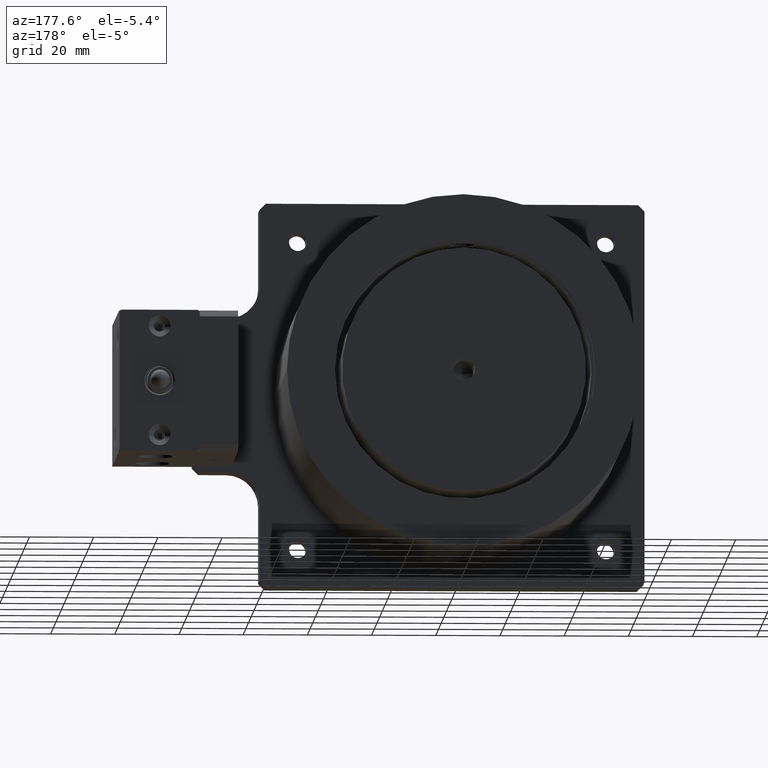
[diagram: clean part render]
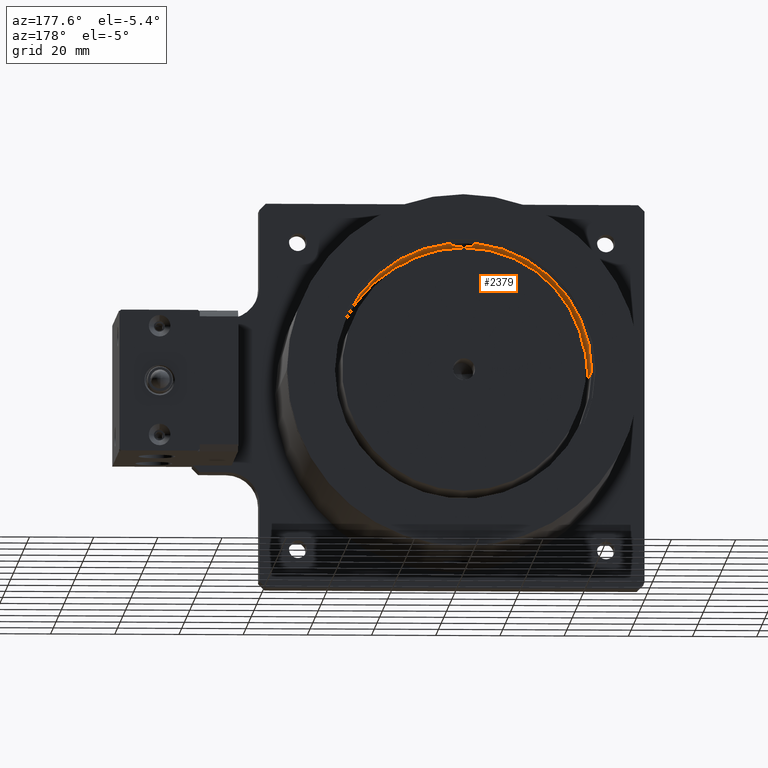
[diagram: same view with one face highlighted and labeled with its STEP entity id]
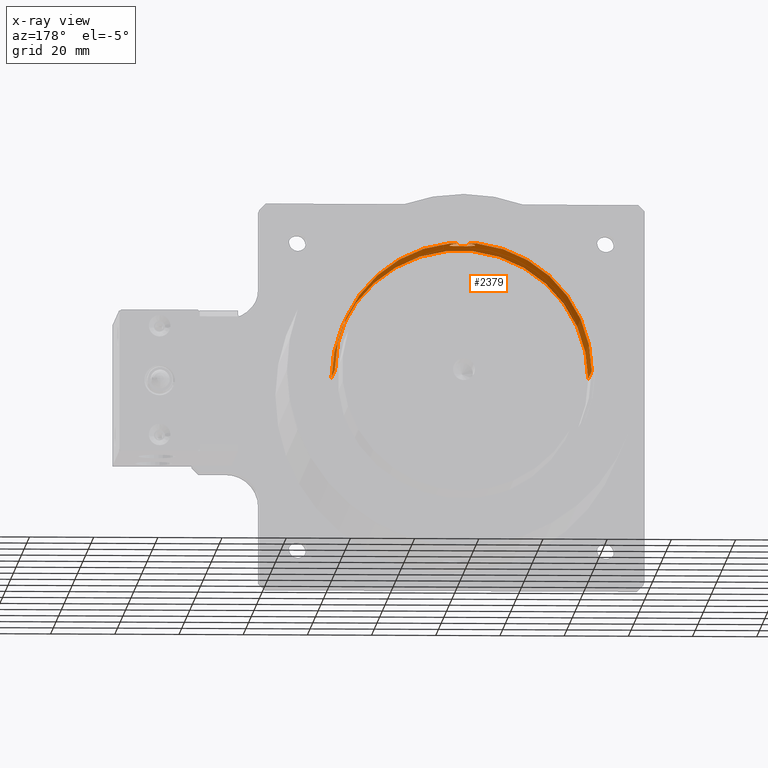
[diagram: x-ray of the same camera — body ghosted, the highlighted face saturated]
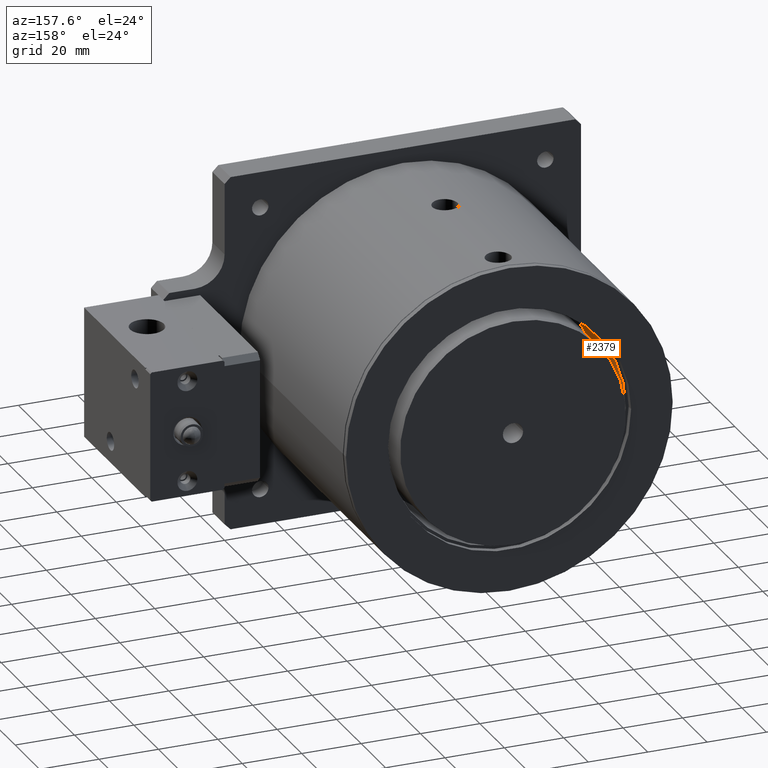
[diagram: same view with one face highlighted and labeled with its STEP entity id]
A machine part, auxiliary view. The second image highlights one B-rep face of the part: STEP entity #2379.
The next image is the same camera in x-ray: the body ghosted, the highlighted face saturated — about 16% of this face is hidden behind the body in this view.
A second angle (auxiliary view) of the same face is appended — the face is thin or edge-on in the first view.
In plain terms, the highlighted cylindrical surface (partial cylindrical patch) has radius 40 mm, axis along (0, 1, 0).
Its self-contained STEP definition (entity closure, byte-faithful):
#900=CARTESIAN_POINT('',(-1.033E1,-8.2283E1,-4.E1));
#901=CARTESIAN_POINT('',(-1.056251782289E1,-8.2283E1,-4.E1));
#902=CARTESIAN_POINT('',(-1.102154020439E1,-8.223906440972E1,
-3.999597734930E1));
#903=CARTESIAN_POINT('',(-1.169969150205E1,-8.204110077887E1,
-3.997838880405E1));
#904=CARTESIAN_POINT('',(-1.234372176926E1,-8.171133420473E1,
-3.995088869234E1));
#905=CARTESIAN_POINT('',(-1.293443222659E1,-8.125267917317E1,
-3.991641457498E1));
#906=CARTESIAN_POINT('',(-1.344740508465E1,-8.067371229118E1,
-3.987924229128E1));
#907=CARTESIAN_POINT('',(-1.385820364304E1,-7.999073719081E1,
-3.984460535201E1));
#908=CARTESIAN_POINT('',(-1.414515281219E1,-7.922787548135E1,
-3.981783127589E1));
#909=CARTESIAN_POINT('',(-1.429264381304E1,-7.841506617976E1,
-3.980324233474E1));
#910=CARTESIAN_POINT('',(-1.429267798953E1,-7.758531646762E1,
-3.980323889239E1));
#911=CARTESIAN_POINT('',(-1.414525602119E1,-7.677250309860E1,
-3.981782124867E1));
#912=CARTESIAN_POINT('',(-1.385838174488E1,-7.600963344746E1,
-3.984458937491E1));
#913=CARTESIAN_POINT('',(-1.344764891788E1,-7.532662214521E1,
-3.987922296316E1));
#914=CARTESIAN_POINT('',(-1.293475174610E1,-7.474762471216E1,
-3.991639334770E1));
#915=CARTESIAN_POINT('',(-1.234412509378E1,-7.428892601758E1,
-3.995086792918E1));
#916=CARTESIAN_POINT('',(-1.170012251510E1,-7.395906369039E1,
-3.997837444594E1));
#917=CARTESIAN_POINT('',(-1.102179781013E1,-7.376097007662E1,
-3.999597415752E1));
#918=CARTESIAN_POINT('',(-1.056261599067E1,-7.3717E1,-4.E1));
#919=CARTESIAN_POINT('',(-1.033E1,-7.3717E1,-4.E1));
#924=DIRECTION('',(0.E0,1.E0,0.E0));
#925=VECTOR('',#924,2.6E1);
#926=CARTESIAN_POINT('',(-5.033E1,-8.5E1,0.E0));
#927=LINE('',#926,#925);
#955=CARTESIAN_POINT('',(-1.033E1,-8.5E1,0.E0));
#956=DIRECTION('',(0.E0,-1.E0,0.E0));
#957=DIRECTION('',(-1.E0,0.E0,0.E0));
#958=AXIS2_PLACEMENT_3D('',#955,#956,#957);
#977=DIRECTION('',(0.E0,1.E0,0.E0));
#978=VECTOR('',#977,2.6E1);
#979=CARTESIAN_POINT('',(2.967E1,-8.5E1,0.E0));
#980=LINE('',#979,#978);
#992=CARTESIAN_POINT('',(-1.033E1,-5.9E1,0.E0));
#993=DIRECTION('',(0.E0,-1.E0,0.E0));
#994=DIRECTION('',(-1.E0,0.E0,0.E0));
#995=AXIS2_PLACEMENT_3D('',#992,#993,#994);
#1091=CARTESIAN_POINT('',(-1.033E1,-7.3717E1,-4.E1));
#1092=CARTESIAN_POINT('',(-1.009748217711E1,-7.3717E1,-4.E1));
#1093=CARTESIAN_POINT('',(-9.638459795614E0,-7.376093559028E1,
-3.999597734930E1));
#1094=CARTESIAN_POINT('',(-8.960308497948E0,-7.395889922113E1,
-3.997838880405E1));
#1095=CARTESIAN_POINT('',(-8.316278230742E0,-7.428866579527E1,
-3.995088869234E1));
#1096=CARTESIAN_POINT('',(-7.725567773412E0,-7.474732082683E1,
-3.991641457498E1));
#1097=CARTESIAN_POINT('',(-7.212594915352E0,-7.532628770882E1,
-3.987924229128E1));
#1098=CARTESIAN_POINT('',(-6.801796356956E0,-7.600926280919E1,
-3.984460535201E1));
#1099=CARTESIAN_POINT('',(-6.514847187813E0,-7.677212451865E1,
-3.981783127589E1));
#1100=CARTESIAN_POINT('',(-6.367356186957E0,-7.758493382024E1,
-3.980324233474E1));
#1101=CARTESIAN_POINT('',(-6.367322010467E0,-7.841468353238E1,
-3.980323889239E1));
#1102=CARTESIAN_POINT('',(-6.514743978809E0,-7.922749690140E1,
-3.981782124867E1));
#1103=CARTESIAN_POINT('',(-6.801618255115E0,-7.999036655254E1,
-3.984458937491E1));
#1104=CARTESIAN_POINT('',(-7.212351082115E0,-8.067337785479E1,
-3.987922296316E1));
#1105=CARTESIAN_POINT('',(-7.725248253900E0,-8.125237528784E1,
-3.991639334770E1));
#1106=CARTESIAN_POINT('',(-8.315874906222E0,-8.171107398242E1,
-3.995086792918E1));
#1107=CARTESIAN_POINT('',(-8.959877484901E0,-8.204093630961E1,
-3.997837444594E1));
#1108=CARTESIAN_POINT('',(-9.638202189868E0,-8.223902992338E1,
-3.999597415752E1));
#1109=CARTESIAN_POINT('',(-1.009738400933E1,-8.2283E1,-4.E1));
#1110=CARTESIAN_POINT('',(-1.033E1,-8.2283E1,-4.E1));
#1929=CARTESIAN_POINT('',(2.967E1,-5.9E1,0.E0));
#1930=CARTESIAN_POINT('',(-5.033E1,-5.9E1,0.E0));
#1931=VERTEX_POINT('',#1929);
#1932=VERTEX_POINT('',#1930);
#1933=CARTESIAN_POINT('',(2.967E1,-8.5E1,0.E0));
#1934=CARTESIAN_POINT('',(-5.033E1,-8.5E1,0.E0));
#1935=VERTEX_POINT('',#1933);
#1936=VERTEX_POINT('',#1934);
#2023=CARTESIAN_POINT('',(-1.033E1,-8.2283E1,-4.E1));
#2024=VERTEX_POINT('',#2023);
#2025=VERTEX_POINT('',#1091);
#2359=CARTESIAN_POINT('',(-1.033E1,-8.5E1,0.E0));
#2360=DIRECTION('',(0.E0,-1.E0,0.E0));
#2361=DIRECTION('',(1.E0,0.E0,0.E0));
#2362=AXIS2_PLACEMENT_3D('',#2359,#2360,#2361);
#2363=CYLINDRICAL_SURFACE('',#2362,4.E1);
#2365=ORIENTED_EDGE('',*,*,#2364,.F.);
#2367=ORIENTED_EDGE('',*,*,#2366,.T.);
#2369=ORIENTED_EDGE('',*,*,#2368,.T.);
#2371=ORIENTED_EDGE('',*,*,#2370,.F.);
#2372=EDGE_LOOP('',(#2365,#2367,#2369,#2371));
#2373=FACE_OUTER_BOUND('',#2372,.F.);
#2375=ORIENTED_EDGE('',*,*,#2374,.F.);
#2376=ORIENTED_EDGE('',*,*,#2336,.F.);
#2377=EDGE_LOOP('',(#2375,#2376));
#2378=FACE_BOUND('',#2377,.F.);
#920=B_SPLINE_CURVE_WITH_KNOTS('',3,(#900,#901,#902,#903,#904,#905,#906,#907,
#908,#909,#910,#911,#912,#913,#914,#915,#916,#917,#918,#919),.UNSPECIFIED.,.F.,
.F.,(4,1,1,1,1,1,1,1,1,1,1,1,1,1,1,1,1,4),(0.E0,5.882352941176E-2,
1.176470588235E-1,1.764705882353E-1,2.352941176471E-1,2.941176470588E-1,
3.529411764706E-1,4.117647058824E-1,4.705882352941E-1,5.294117647059E-1,
5.882352941176E-1,6.470588235294E-1,7.058823529412E-1,7.647058823529E-1,
8.235294117647E-1,8.823529411765E-1,9.411764705882E-1,1.E0),.UNSPECIFIED.);
#959=CIRCLE('',#958,4.E1);
#996=CIRCLE('',#995,4.E1);
#1111=B_SPLINE_CURVE_WITH_KNOTS('',3,(#1091,#1092,#1093,#1094,#1095,#1096,#1097,
#1098,#1099,#1100,#1101,#1102,#1103,#1104,#1105,#1106,#1107,#1108,#1109,#1110),
.UNSPECIFIED.,.F.,.F.,(4,1,1,1,1,1,1,1,1,1,1,1,1,1,1,1,1,4),(0.E0,
5.882352941176E-2,1.176470588235E-1,1.764705882353E-1,2.352941176471E-1,
2.941176470588E-1,3.529411764706E-1,4.117647058824E-1,4.705882352941E-1,
5.294117647059E-1,5.882352941176E-1,6.470588235294E-1,7.058823529412E-1,
7.647058823529E-1,8.235294117647E-1,8.823529411765E-1,9.411764705882E-1,1.E0),
.UNSPECIFIED.);
#2336=EDGE_CURVE('',#2024,#2025,#920,.T.);
#2364=EDGE_CURVE('',#1936,#1935,#959,.T.);
#2366=EDGE_CURVE('',#1936,#1932,#927,.T.);
#2368=EDGE_CURVE('',#1932,#1931,#996,.T.);
#2370=EDGE_CURVE('',#1935,#1931,#980,.T.);
#2374=EDGE_CURVE('',#2025,#2024,#1111,.T.);
#2379=ADVANCED_FACE('',(#2373,#2378),#2363,.F.);